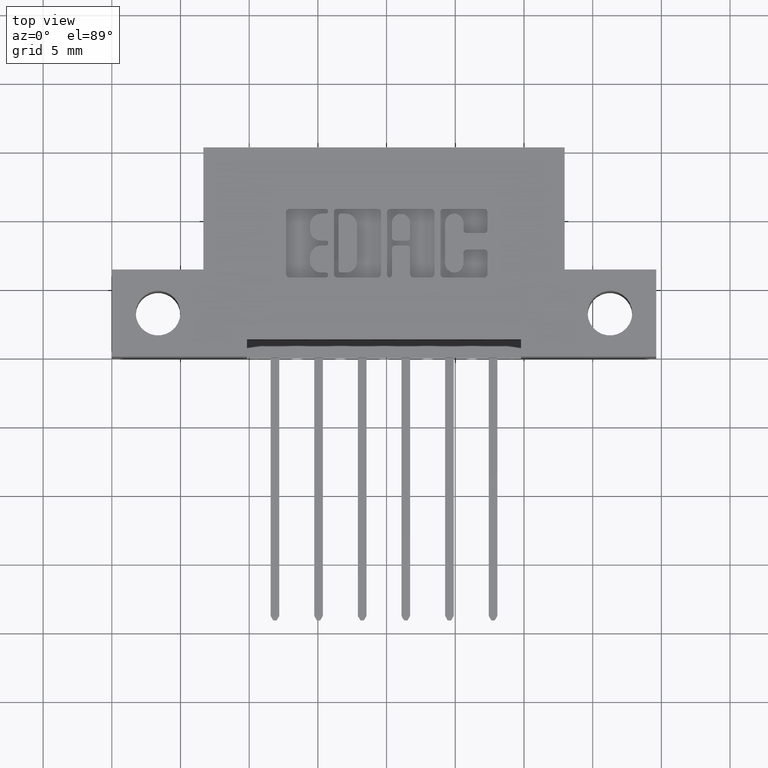
[diagram: clean part render]
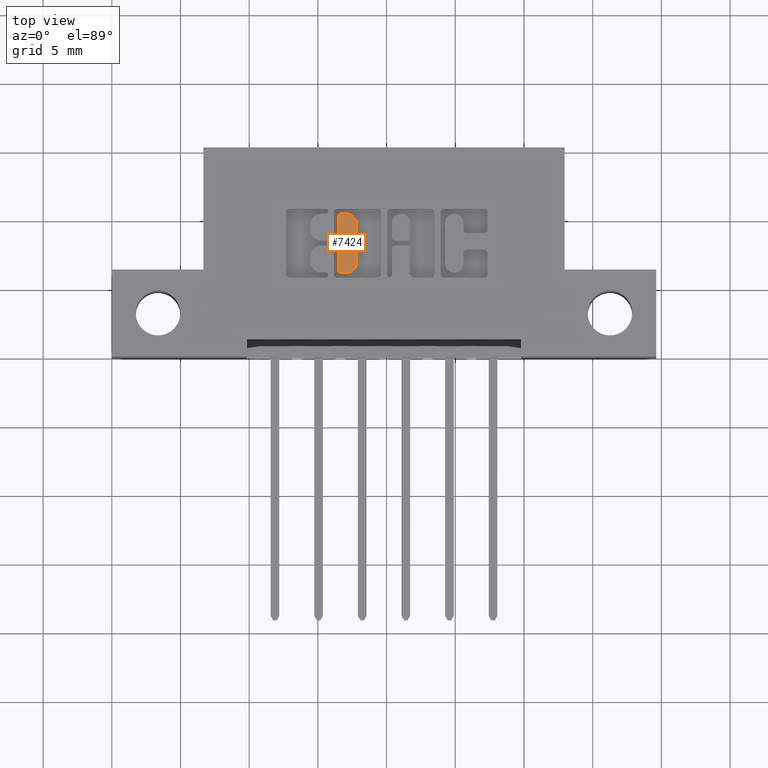
[diagram: same view with one face highlighted and labeled with its STEP entity id]
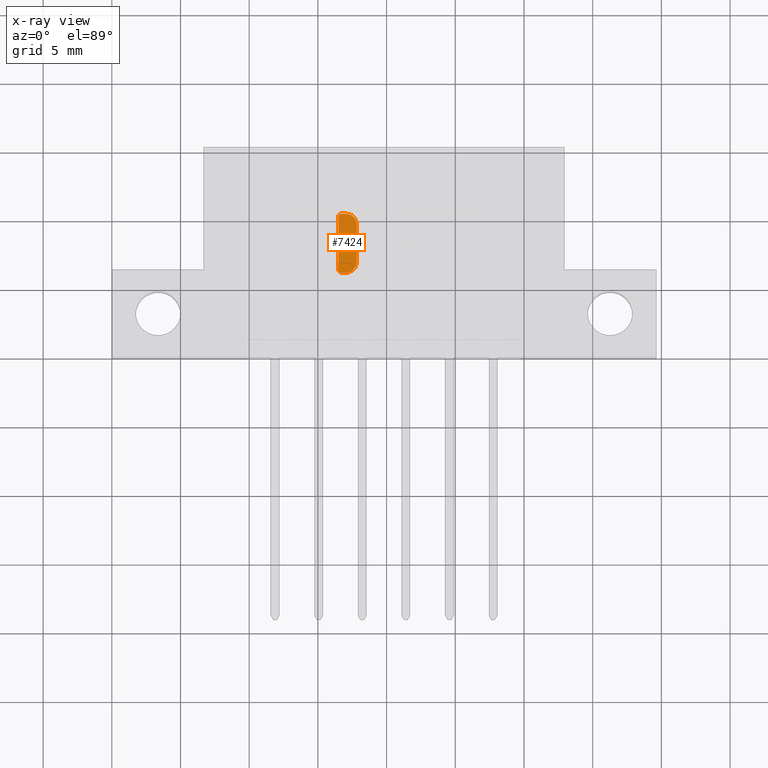
[diagram: x-ray of the same camera — body ghosted, the highlighted face saturated]
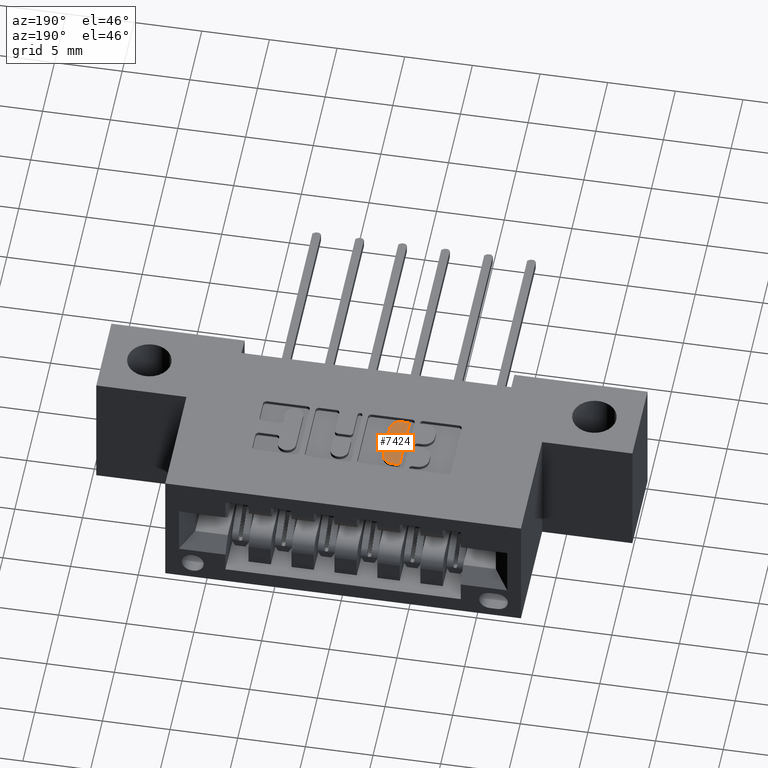
[diagram: same view with one face highlighted and labeled with its STEP entity id]
A machine part, top view. The second image highlights one B-rep face of the part: STEP entity #7424.
The next image is the same camera in x-ray: the body ghosted, the highlighted face saturated — about 0% of this face is hidden behind the body in this view.
A second angle (auxiliary view) of the same face is appended — the face is thin or edge-on in the first view.
In plain terms, the highlighted planar face has unit normal (0, 0, -1).
Its self-contained STEP definition (entity closure, byte-faithful):
#285 = AXIS2_PLACEMENT_3D ( 'NONE', #568, #2594, #6600 ) ;
#469 = AXIS2_PLACEMENT_3D ( 'NONE', #4265, #6271, #4218 ) ;
#529 = VECTOR ( 'NONE', #8407, 39.37007874015748143 ) ;
#568 = CARTESIAN_POINT ( 'NONE',  ( 0.6708006689826718771, 0.3780046191005523859, 0.0000000000000000000 ) ) ;
#775 = CARTESIAN_POINT ( 'NONE',  ( 0.6496969780444989961, 0.0000000000000000000, 0.0000000000000000000 ) ) ;
#850 = ORIENTED_EDGE ( 'NONE', *, *, #4160, .T. ) ;
#1150 = CIRCLE ( 'NONE', #469, 0.006870969142663185293 ) ;
#1249 = ORIENTED_EDGE ( 'NONE', *, *, #6303, .F. ) ;
#1372 = LINE ( 'NONE', #5952, #5177 ) ;
#1594 = DIRECTION ( 'NONE',  ( 1.000000000000000000, 0.0000000000000000000, 0.0000000000000000000 ) ) ;
#1777 = DIRECTION ( 'NONE',  ( -1.000000000000000000, 0.0000000000000000000, -0.0000000000000000000 ) ) ;
#1877 = ORIENTED_EDGE ( 'NONE', *, *, #7342, .T. ) ;
#2594 = DIRECTION ( 'NONE',  ( -0.0000000000000000000, 0.0000000000000000000, 1.000000000000000000 ) ) ;
#2671 = EDGE_CURVE ( 'NONE', #6109, #3612, #3722, .T. ) ;
#2820 = ORIENTED_EDGE ( 'NONE', *, *, #5857, .T. ) ;
#2870 = ORIENTED_EDGE ( 'NONE', *, *, #7468, .F. ) ;
#2896 = EDGE_CURVE ( 'NONE', #6619, #6655, #1150, .T. ) ;
#2909 = LINE ( 'NONE', #775, #7554 ) ;
#3123 = LINE ( 'NONE', #5865, #529 ) ;
#3421 = VERTEX_POINT ( 'NONE', #5262 ) ;
#3430 = DIRECTION ( 'NONE',  ( 0.0000000000000000000, 1.000000000000000000, -0.0000000000000000000 ) ) ;
#3437 = CARTESIAN_POINT ( 'NONE',  ( 0.6565679471871667117, 0.4025437946100565711, 0.0000000000000000000 ) ) ;
#3483 = CARTESIAN_POINT ( 'NONE',  ( 0.7022108136348438334, 0.3780046191005523859, 0.0000000000000000000 ) ) ;
#3575 = CARTESIAN_POINT ( 'NONE',  ( 0.6708006689826736535, 0.2719953808994843292, 0.0000000000000000000 ) ) ;
#3612 = VERTEX_POINT ( 'NONE', #4117 ) ;
#3722 = LINE ( 'NONE', #8452, #5905 ) ;
#3758 = PLANE ( 'NONE',  #4014 ) ;
#3924 = CIRCLE ( 'NONE', #7122, 0.006870969142667692972 ) ;
#4014 = AXIS2_PLACEMENT_3D ( 'NONE', #7201, #7116, #1777 ) ;
#4117 = CARTESIAN_POINT ( 'NONE',  ( 0.6708006689826782054, 0.4094147637527243422, 0.0000000000000000000 ) ) ;
#4135 = EDGE_CURVE ( 'NONE', #6770, #6655, #1372, .T. ) ;
#4160 = EDGE_CURVE ( 'NONE', #8303, #3612, #4348, .T. ) ;
#4191 = ORIENTED_EDGE ( 'NONE', *, *, #4135, .F. ) ;
#4218 = DIRECTION ( 'NONE',  ( 1.000000000000000000, 0.0000000000000000000, 0.0000000000000000000 ) ) ;
#4265 = CARTESIAN_POINT ( 'NONE',  ( 0.6565679471871621598, 0.2474562053899773129, 0.0000000000000000000 ) ) ;
#4348 = CIRCLE ( 'NONE', #285, 0.03141014465217194934 ) ;
#4551 = FACE_OUTER_BOUND ( 'NONE', #5868, .T. ) ;
#4848 = DIRECTION ( 'NONE',  ( -0.0000000000000000000, 0.0000000000000000000, 1.000000000000000000 ) ) ;
#5169 = DIRECTION ( 'NONE',  ( 1.000000000000000000, 0.0000000000000000000, 0.0000000000000000000 ) ) ;
#5177 = VECTOR ( 'NONE', #5996, 39.37007874015748143 ) ;
#5262 = CARTESIAN_POINT ( 'NONE',  ( 0.7022108136348438334, 0.2719953808994843292, 0.0000000000000000000 ) ) ;
#5275 = CARTESIAN_POINT ( 'NONE',  ( 0.6565679471871621598, 0.2405852362473140937, 0.0000000000000000000 ) ) ;
#5282 = CIRCLE ( 'NONE', #7495, 0.03141014465217017299 ) ;
#5857 = EDGE_CURVE ( 'NONE', #6109, #7514, #3924, .T. ) ;
#5865 = CARTESIAN_POINT ( 'NONE',  ( 0.7022108136348438334, 0.0000000000000000000, 0.0000000000000000000 ) ) ;
#5868 = EDGE_LOOP ( 'NONE', ( #2820, #1249, #8496, #4191, #1877, #2870, #850, #6930 ) ) ;
#5905 = VECTOR ( 'NONE', #5169, 39.37007874015748143 ) ;
#5931 = CARTESIAN_POINT ( 'NONE',  ( 0.6496969780444989961, 0.2474562053899773129, 0.0000000000000000000 ) ) ;
#5952 = CARTESIAN_POINT ( 'NONE',  ( 0.0000000000000000000, 0.2405852362473140937, 0.0000000000000000000 ) ) ;
#5996 = DIRECTION ( 'NONE',  ( -1.000000000000000000, 0.0000000000000000000, 0.0000000000000000000 ) ) ;
#6013 = CARTESIAN_POINT ( 'NONE',  ( 0.6708006689826736535, 0.2405852362473140937, 0.0000000000000000000 ) ) ;
#6109 = VERTEX_POINT ( 'NONE', #8476 ) ;
#6271 = DIRECTION ( 'NONE',  ( -0.0000000000000000000, 0.0000000000000000000, 1.000000000000000000 ) ) ;
#6303 = EDGE_CURVE ( 'NONE', #6619, #7514, #2909, .T. ) ;
#6600 = DIRECTION ( 'NONE',  ( 1.000000000000000000, 0.0000000000000000000, 0.0000000000000000000 ) ) ;
#6619 = VERTEX_POINT ( 'NONE', #5931 ) ;
#6655 = VERTEX_POINT ( 'NONE', #5275 ) ;
#6770 = VERTEX_POINT ( 'NONE', #6013 ) ;
#6898 = DIRECTION ( 'NONE',  ( 1.000000000000000000, 0.0000000000000000000, 0.0000000000000000000 ) ) ;
#6930 = ORIENTED_EDGE ( 'NONE', *, *, #2671, .F. ) ;
#7116 = DIRECTION ( 'NONE',  ( 0.0000000000000000000, 0.0000000000000000000, -1.000000000000000000 ) ) ;
#7122 = AXIS2_PLACEMENT_3D ( 'NONE', #3437, #8225, #6898 ) ;
#7201 = CARTESIAN_POINT ( 'NONE',  ( 0.0000000000000000000, 0.5999999999999999778, 0.0000000000000000000 ) ) ;
#7244 = CARTESIAN_POINT ( 'NONE',  ( 0.6496969780444989961, 0.4025437946100565711, 0.0000000000000000000 ) ) ;
#7342 = EDGE_CURVE ( 'NONE', #6770, #3421, #5282, .T. ) ;
#7424 = ADVANCED_FACE ( 'NONE', ( #4551 ), #3758, .F. ) ;
#7468 = EDGE_CURVE ( 'NONE', #8303, #3421, #3123, .T. ) ;
#7495 = AXIS2_PLACEMENT_3D ( 'NONE', #3575, #4848, #1594 ) ;
#7514 = VERTEX_POINT ( 'NONE', #7244 ) ;
#7554 = VECTOR ( 'NONE', #3430, 39.37007874015748143 ) ;
#8225 = DIRECTION ( 'NONE',  ( -0.0000000000000000000, 0.0000000000000000000, 1.000000000000000000 ) ) ;
#8303 = VERTEX_POINT ( 'NONE', #3483 ) ;
#8407 = DIRECTION ( 'NONE',  ( 0.0000000000000000000, -1.000000000000000000, 0.0000000000000000000 ) ) ;
#8452 = CARTESIAN_POINT ( 'NONE',  ( -0.0000000000000000000, 0.4094147637527243422, 0.0000000000000000000 ) ) ;
#8476 = CARTESIAN_POINT ( 'NONE',  ( 0.6565679471871667117, 0.4094147637527243422, 0.0000000000000000000 ) ) ;
#8496 = ORIENTED_EDGE ( 'NONE', *, *, #2896, .T. ) ;